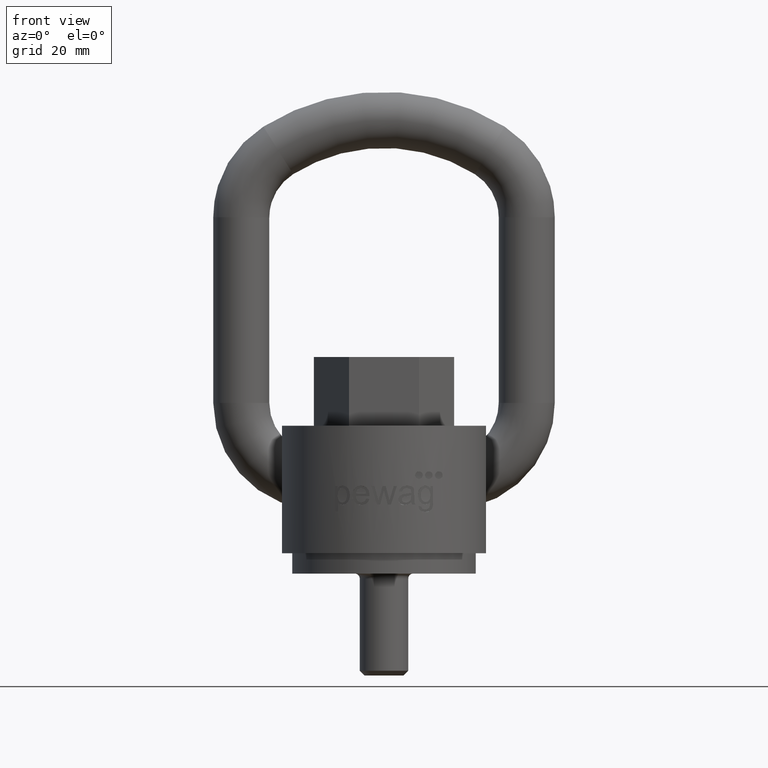
[diagram: clean part render]
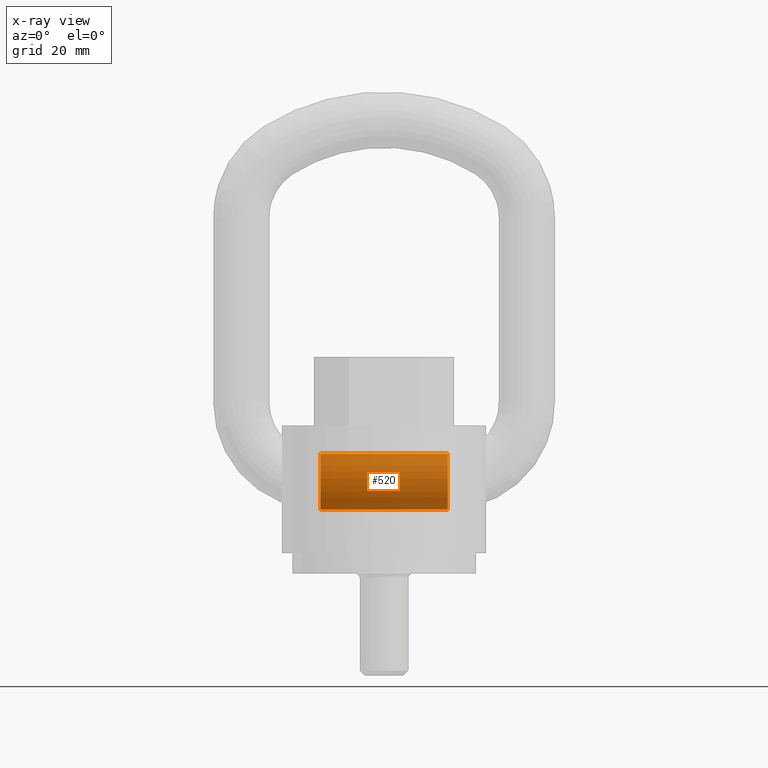
[diagram: x-ray — body ghosted, one internal face saturated and labeled with its STEP entity id]
A machine part, front view, then the same camera in x-ray: the body is ghosted and one INTERNAL B-rep face — a face not visible from any outside direction — is saturated and labeled: STEP entity #520.
In plain terms, the highlighted cylindrical surface (bore or boss wall) has radius 5.5 mm, axis along (1, 0, 0).
Its self-contained STEP definition (entity closure, byte-faithful):
#520=ADVANCED_FACE('',(#603,#604),#542,.T.);
#542=CYLINDRICAL_SURFACE('',#2530,5.5);
#603=FACE_BOUND('',#765,.T.);
#604=FACE_BOUND('',#766,.T.);
#765=EDGE_LOOP('',(#1706));
#766=EDGE_LOOP('',(#1707));
#1104=CIRCLE('',#2526,5.5);
#1106=CIRCLE('',#2529,5.5);
#1706=ORIENTED_EDGE('',*,*,#2228,.T.);
#1707=ORIENTED_EDGE('',*,*,#2226,.F.);
#1922=VERTEX_POINT('',#5171);
#1924=VERTEX_POINT('',#5176);
#2226=EDGE_CURVE('',#1922,#1922,#1104,.T.);
#2228=EDGE_CURVE('',#1924,#1924,#1106,.T.);
#2526=AXIS2_PLACEMENT_3D('',#5170,#2949,#2950);
#2529=AXIS2_PLACEMENT_3D('',#5175,#2955,#2956);
#2530=AXIS2_PLACEMENT_3D('',#5177,#2957,#2958);
#2949=DIRECTION('',(1.,0.,-1.72254642419883E-16));
#2950=DIRECTION('',(-3.1540426835942E-16,0.,-1.));
#2955=DIRECTION('',(1.,0.,-1.72254642419883E-16));
#2956=DIRECTION('',(-3.1540426835942E-16,0.,-1.));
#2957=DIRECTION('',(1.,0.,0.));
#2958=DIRECTION('',(0.,0.,-1.));
#5170=CARTESIAN_POINT('',(12.5,19.,14.));
#5171=CARTESIAN_POINT('',(12.5,19.,8.5));
#5175=CARTESIAN_POINT('',(-12.5,19.,14.));
#5176=CARTESIAN_POINT('',(-12.5,19.,8.5));
#5177=CARTESIAN_POINT('',(-12.5,19.,14.));